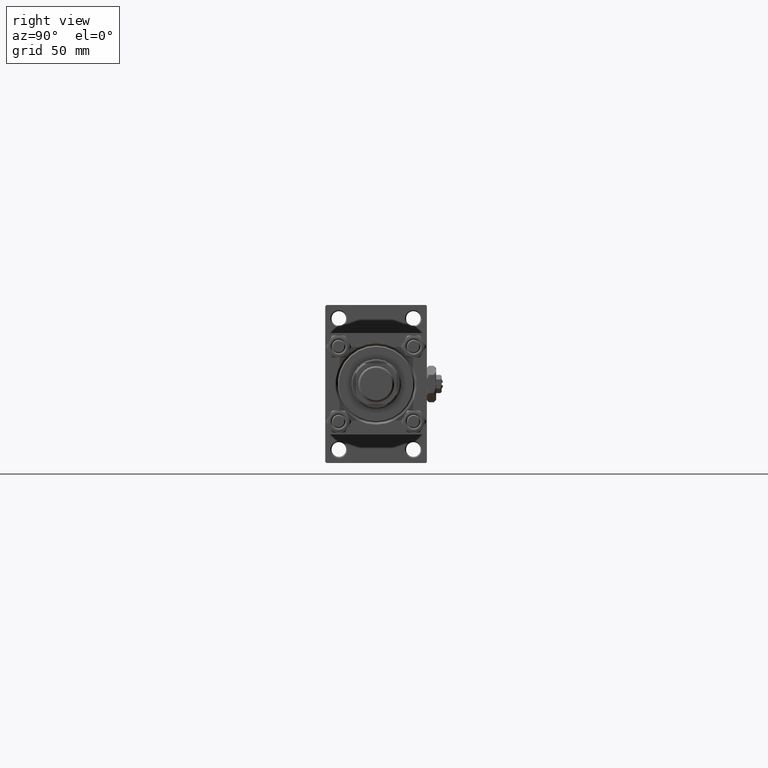
[diagram: clean part render]
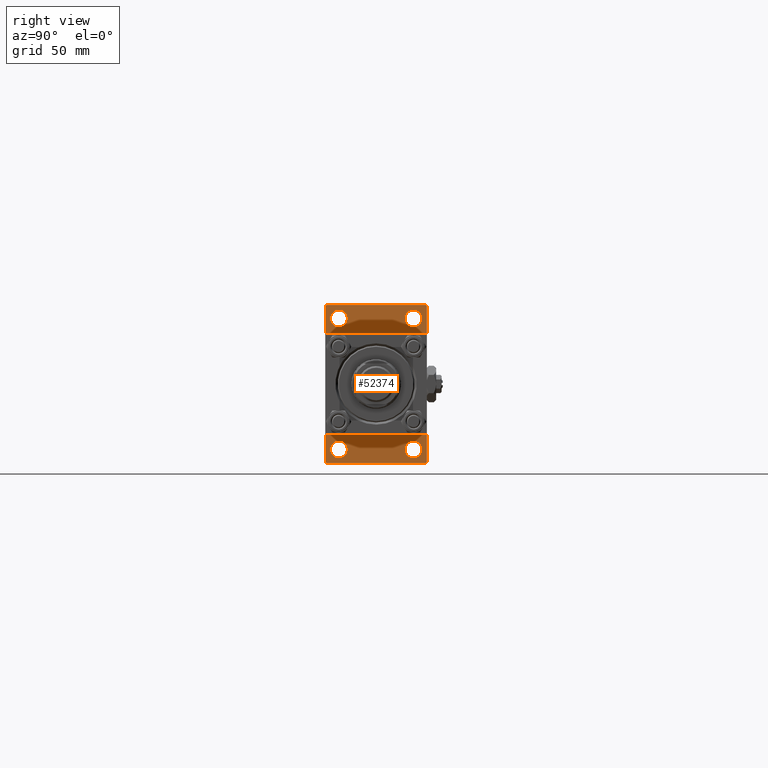
[diagram: same view with one face highlighted and labeled with its STEP entity id]
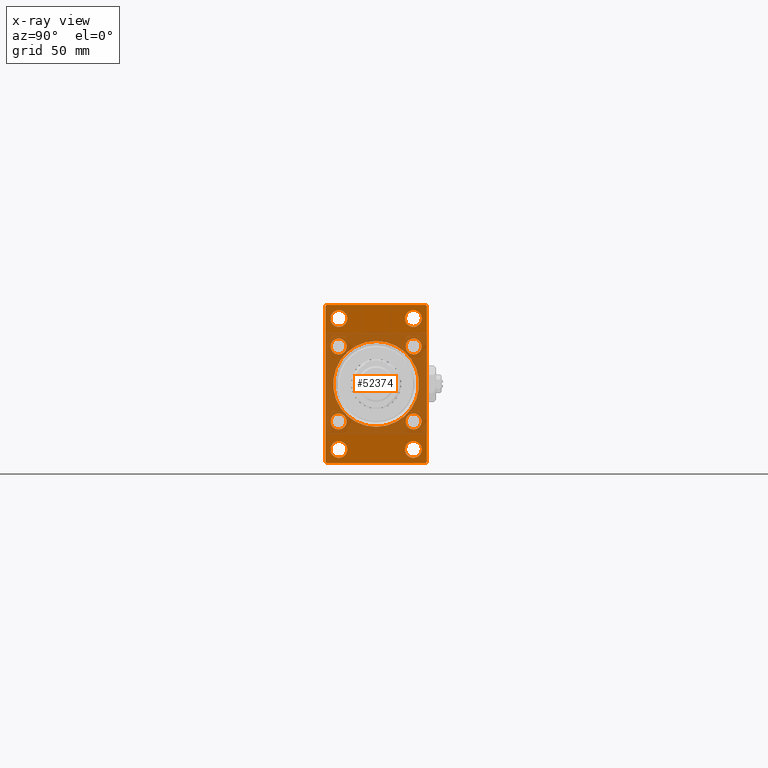
[diagram: x-ray of the same camera — body ghosted, the highlighted face saturated]
A machine part, right view. The second image highlights one B-rep face of the part: STEP entity #52374.
The next image is the same camera in x-ray: the body ghosted, the highlighted face saturated — about 44% of this face is hidden behind the body in this view.
In plain terms, the highlighted planar face has unit normal (-1, 0, 0).
Its self-contained STEP definition (entity closure, byte-faithful):
#17 = CIRCLE ( 'NONE', #29633, 3.749999999999975575 ) ;
#107 = ORIENTED_EDGE ( 'NONE', *, *, #19731, .F. ) ;
#483 = EDGE_LOOP ( 'NONE', ( #46941, #21311 ) ) ;
#1132 = DIRECTION ( 'NONE',  ( -1.000000000000000000, 0.000000000000000000, -0.000000000000000000 ) ) ;
#1295 = EDGE_CURVE ( 'NONE', #42853, #26119, #33897, .T. ) ;
#1417 = EDGE_LOOP ( 'NONE', ( #51754, #32099 ) ) ;
#1655 = CARTESIAN_POINT ( 'NONE',  ( 25.00000000000000000, -16.59999999999999076, -16.60000000000000853 ) ) ;
#1703 = CIRCLE ( 'NONE', #44055, 19.00000000000000000 ) ;
#2112 = CARTESIAN_POINT ( 'NONE',  ( 25.00000000000000000, 16.49999999999999289, 28.99999999999998934 ) ) ;
#2207 = EDGE_CURVE ( 'NONE', #41425, #40800, #24503, .T. ) ;
#2624 = FACE_BOUND ( 'NONE', #23554, .T. ) ;
#3165 = DIRECTION ( 'NONE',  ( 0.000000000000000000, 0.000000000000000000, -1.000000000000000000 ) ) ;
#3223 = VERTEX_POINT ( 'NONE', #51344 ) ;
#3306 = CARTESIAN_POINT ( 'NONE',  ( 25.00000000000000000, 16.59999999999999787, -13.09999999999997300 ) ) ;
#4178 = EDGE_CURVE ( 'NONE', #16349, #29903, #17, .T. ) ;
#4385 = EDGE_LOOP ( 'NONE', ( #5790, #6705 ) ) ;
#4490 = CARTESIAN_POINT ( 'NONE',  ( 24.99999999999999289, -2.602085213965210642E-15, 19.00000000000000000 ) ) ;
#4502 = CIRCLE ( 'NONE', #42569, 3.500000000000003109 ) ;
#4521 = ORIENTED_EDGE ( 'NONE', *, *, #2207, .T. ) ;
#4573 = CARTESIAN_POINT ( 'NONE',  ( 25.00000000000000000, 16.59999999999999787, 16.60000000000000497 ) ) ;
#4574 = CARTESIAN_POINT ( 'NONE',  ( 25.00000000000000000, 16.49999999999999289, -32.75000000000003553 ) ) ;
#4740 = ORIENTED_EDGE ( 'NONE', *, *, #10144, .T. ) ;
#4933 = VERTEX_POINT ( 'NONE', #33167 ) ;
#5521 = ORIENTED_EDGE ( 'NONE', *, *, #25293, .T. ) ;
#5560 = FACE_BOUND ( 'NONE', #19928, .T. ) ;
#5627 = ORIENTED_EDGE ( 'NONE', *, *, #19428, .T. ) ;
#5706 = CARTESIAN_POINT ( 'NONE',  ( 25.00000000000000000, -16.50000000000000711, 25.24999999999996092 ) ) ;
#5723 = EDGE_LOOP ( 'NONE', ( #39144, #37399, #107, #41552, #28052, #5521, #39562, #29281 ) ) ;
#5790 = ORIENTED_EDGE ( 'NONE', *, *, #8298, .T. ) ;
#5854 = VECTOR ( 'NONE', #42106, 999.9999999999998863 ) ;
#5918 = VERTEX_POINT ( 'NONE', #35001 ) ;
#6335 = FACE_BOUND ( 'NONE', #27153, .T. ) ;
#6588 = DIRECTION ( 'NONE',  ( -0.000000000000000000, 0.000000000000000000, 1.000000000000000000 ) ) ;
#6705 = ORIENTED_EDGE ( 'NONE', *, *, #7513, .T. ) ;
#6930 = CARTESIAN_POINT ( 'NONE',  ( 25.00000000000000000, 22.50000000000000355, 35.00000000000000711 ) ) ;
#6942 = CIRCLE ( 'NONE', #36576, 3.500000000000006661 ) ;
#7239 = VERTEX_POINT ( 'NONE', #29235 ) ;
#7308 = CARTESIAN_POINT ( 'NONE',  ( 25.00000000000000000, -16.50000000000000711, 28.99999999999998934 ) ) ;
#7409 = DIRECTION ( 'NONE',  ( 0.000000000000000000, 0.000000000000000000, 1.000000000000000000 ) ) ;
#7513 = EDGE_CURVE ( 'NONE', #9694, #7239, #17913, .T. ) ;
#7837 = CARTESIAN_POINT ( 'NONE',  ( 25.00000000000000000, -22.00000000000000355, -35.00000000000000000 ) ) ;
#8298 = EDGE_CURVE ( 'NONE', #7239, #9694, #6942, .T. ) ;
#8469 = EDGE_CURVE ( 'NONE', #20475, #51329, #30680, .T. ) ;
#8546 = EDGE_CURVE ( 'NONE', #26119, #4933, #51492, .T. ) ;
#8558 = DIRECTION ( 'NONE',  ( -1.000000000000000000, 0.000000000000000000, -0.000000000000000000 ) ) ;
#8561 = DIRECTION ( 'NONE',  ( 0.000000000000000000, 0.000000000000000000, 1.000000000000000000 ) ) ;
#8563 = ORIENTED_EDGE ( 'NONE', *, *, #30280, .T. ) ;
#8848 = CARTESIAN_POINT ( 'NONE',  ( 25.00000000000000000, -16.59999999999999076, -16.60000000000000853 ) ) ;
#8901 = EDGE_CURVE ( 'NONE', #51329, #20475, #10345, .T. ) ;
#9198 = EDGE_CURVE ( 'NONE', #27658, #35706, #25070, .T. ) ;
#9244 = ORIENTED_EDGE ( 'NONE', *, *, #52024, .T. ) ;
#9694 = VERTEX_POINT ( 'NONE', #43655 ) ;
#9985 = VERTEX_POINT ( 'NONE', #5706 ) ;
#10061 = VERTEX_POINT ( 'NONE', #22151 ) ;
#10144 = EDGE_CURVE ( 'NONE', #50991, #11439, #42552, .T. ) ;
#10246 = EDGE_CURVE ( 'NONE', #38109, #10929, #12069, .T. ) ;
#10307 = FACE_BOUND ( 'NONE', #31988, .T. ) ;
#10345 = CIRCLE ( 'NONE', #21364, 3.750000000000027534 ) ;
#10428 = DIRECTION ( 'NONE',  ( -1.000000000000000000, 0.000000000000000000, -0.000000000000000000 ) ) ;
#10504 = CIRCLE ( 'NONE', #24933, 3.500000000000031086 ) ;
#10571 = FACE_BOUND ( 'NONE', #44590, .T. ) ;
#10929 = VERTEX_POINT ( 'NONE', #19735 ) ;
#11157 = DIRECTION ( 'NONE',  ( -1.000000000000000000, 0.000000000000000000, -0.000000000000000000 ) ) ;
#11174 = VECTOR ( 'NONE', #36470, 1000.000000000000000 ) ;
#11439 = VERTEX_POINT ( 'NONE', #37941 ) ;
#11521 = CARTESIAN_POINT ( 'NONE',  ( 25.00000000000000000, -16.59999999999999076, -13.10000000000000320 ) ) ;
#11758 = DIRECTION ( 'NONE',  ( 0.000000000000000000, 0.000000000000000000, 1.000000000000000000 ) ) ;
#11789 = LINE ( 'NONE', #20286, #50195 ) ;
#12069 = CIRCLE ( 'NONE', #33258, 3.500000000000003109 ) ;
#12518 = DIRECTION ( 'NONE',  ( -1.000000000000000000, 0.000000000000000000, -0.000000000000000000 ) ) ;
#12787 = CARTESIAN_POINT ( 'NONE',  ( 25.00000000000000000, 16.59999999999999787, -16.60000000000000497 ) ) ;
#13019 = EDGE_CURVE ( 'NONE', #41009, #27658, #34479, .T. ) ;
#13035 = DIRECTION ( 'NONE',  ( 0.000000000000000000, 0.000000000000000000, 1.000000000000000000 ) ) ;
#13294 = DIRECTION ( 'NONE',  ( -1.000000000000000000, 0.000000000000000000, -0.000000000000000000 ) ) ;
#13499 = DIRECTION ( 'NONE',  ( -1.000000000000000000, 0.000000000000000000, -0.000000000000000000 ) ) ;
#13573 = VERTEX_POINT ( 'NONE', #32780 ) ;
#13815 = DIRECTION ( 'NONE',  ( -1.000000000000000000, 0.000000000000000000, -0.000000000000000000 ) ) ;
#13984 = AXIS2_PLACEMENT_3D ( 'NONE', #52225, #28345, #32315 ) ;
#14141 = DIRECTION ( 'NONE',  ( 0.000000000000000000, 0.000000000000000000, 1.000000000000000000 ) ) ;
#14153 = DIRECTION ( 'NONE',  ( 0.000000000000000000, 0.000000000000000000, 1.000000000000000000 ) ) ;
#14286 = CARTESIAN_POINT ( 'NONE',  ( 25.00000000000000000, -22.49999999999999645, -34.50000000000000000 ) ) ;
#14369 = AXIS2_PLACEMENT_3D ( 'NONE', #12787, #8558, #20223 ) ;
#14739 = CIRCLE ( 'NONE', #20694, 3.750000000000031086 ) ;
#15073 = AXIS2_PLACEMENT_3D ( 'NONE', #7308, #34640, #43374 ) ;
#15323 = DIRECTION ( 'NONE',  ( -1.000000000000000000, 0.000000000000000000, -0.000000000000000000 ) ) ;
#15393 = DIRECTION ( 'NONE',  ( 0.000000000000000000, 0.000000000000000000, 1.000000000000000000 ) ) ;
#16260 = DIRECTION ( 'NONE',  ( -1.000000000000000000, 0.000000000000000000, -0.000000000000000000 ) ) ;
#16349 = VERTEX_POINT ( 'NONE', #19838 ) ;
#16351 = CARTESIAN_POINT ( 'NONE',  ( 25.00000000000000000, 16.59999999999999787, 13.09999999999997300 ) ) ;
#16931 = ORIENTED_EDGE ( 'NONE', *, *, #10246, .T. ) ;
#17913 = CIRCLE ( 'NONE', #40772, 3.500000000000006661 ) ;
#18615 = CIRCLE ( 'NONE', #14369, 3.500000000000031086 ) ;
#18795 = CARTESIAN_POINT ( 'NONE',  ( 25.00000000000000000, 0.000000000000000000, 0.000000000000000000 ) ) ;
#19428 = EDGE_CURVE ( 'NONE', #5918, #40308, #18615, .T. ) ;
#19456 = VECTOR ( 'NONE', #49786, 1000.000000000000000 ) ;
#19731 = EDGE_CURVE ( 'NONE', #42853, #10061, #33602, .T. ) ;
#19735 = CARTESIAN_POINT ( 'NONE',  ( 25.00000000000000000, -16.59999999999999076, -20.10000000000000853 ) ) ;
#19838 = CARTESIAN_POINT ( 'NONE',  ( 25.00000000000000000, 16.49999999999999289, 25.25000000000001421 ) ) ;
#19853 = CIRCLE ( 'NONE', #26645, 3.750000000000027534 ) ;
#19928 = EDGE_LOOP ( 'NONE', ( #34600, #16931 ) ) ;
#20035 = DIRECTION ( 'NONE',  ( 0.000000000000000000, 0.000000000000000000, 1.000000000000000000 ) ) ;
#20223 = DIRECTION ( 'NONE',  ( 0.000000000000000000, 0.000000000000000000, 1.000000000000000000 ) ) ;
#20286 = CARTESIAN_POINT ( 'NONE',  ( 25.00000000000000000, 22.50000000000000355, -34.99999999999999289 ) ) ;
#20475 = VERTEX_POINT ( 'NONE', #31850 ) ;
#20694 = AXIS2_PLACEMENT_3D ( 'NONE', #34500, #13815, #49633 ) ;
#20696 = EDGE_CURVE ( 'NONE', #37728, #43984, #1703, .T. ) ;
#21311 = ORIENTED_EDGE ( 'NONE', *, *, #27167, .F. ) ;
#21364 = AXIS2_PLACEMENT_3D ( 'NONE', #51684, #15323, #31260 ) ;
#21383 = VECTOR ( 'NONE', #29556, 999.9999999999998863 ) ;
#21735 = PLANE ( 'NONE',  #37002 ) ;
#21979 = AXIS2_PLACEMENT_3D ( 'NONE', #35216, #30201, #23013 ) ;
#22151 = CARTESIAN_POINT ( 'NONE',  ( 25.00000000000000000, 22.50000000000000355, -34.49999999999999289 ) ) ;
#22425 = CARTESIAN_POINT ( 'NONE',  ( 25.00000000000000000, -22.49999999999999645, 34.50000000000000000 ) ) ;
#23013 = DIRECTION ( 'NONE',  ( 0.000000000000000000, 0.000000000000000000, 1.000000000000000000 ) ) ;
#23103 = DIRECTION ( 'NONE',  ( 0.000000000000000000, -1.000000000000000000, -1.541976423090495387E-16 ) ) ;
#23554 = EDGE_LOOP ( 'NONE', ( #5627, #25967 ) ) ;
#23744 = DIRECTION ( 'NONE',  ( 0.000000000000000000, -1.000000000000000000, -1.541976423090495387E-16 ) ) ;
#24052 = ORIENTED_EDGE ( 'NONE', *, *, #8469, .T. ) ;
#24503 = CIRCLE ( 'NONE', #21979, 3.750000000000027534 ) ;
#24933 = AXIS2_PLACEMENT_3D ( 'NONE', #4573, #13294, #13035 ) ;
#25070 = LINE ( 'NONE', #7837, #11174 ) ;
#25124 = CARTESIAN_POINT ( 'NONE',  ( 25.00000000000000000, 22.50000000000000355, 35.00000000000000711 ) ) ;
#25293 = EDGE_CURVE ( 'NONE', #4933, #41009, #41359, .T. ) ;
#25967 = ORIENTED_EDGE ( 'NONE', *, *, #50037, .T. ) ;
#25974 = FACE_BOUND ( 'NONE', #4385, .T. ) ;
#26111 = CIRCLE ( 'NONE', #15073, 3.750000000000031086 ) ;
#26119 = VERTEX_POINT ( 'NONE', #49186 ) ;
#26148 = EDGE_CURVE ( 'NONE', #13573, #10061, #49448, .T. ) ;
#26441 = VECTOR ( 'NONE', #23103, 1000.000000000000000 ) ;
#26645 = AXIS2_PLACEMENT_3D ( 'NONE', #30599, #10428, #14141 ) ;
#26716 = CIRCLE ( 'NONE', #13984, 3.749999999999975575 ) ;
#26913 = EDGE_CURVE ( 'NONE', #13573, #35706, #11789, .T. ) ;
#27153 = EDGE_LOOP ( 'NONE', ( #8563, #9244 ) ) ;
#27167 = EDGE_CURVE ( 'NONE', #43984, #37728, #31607, .T. ) ;
#27447 = CARTESIAN_POINT ( 'NONE',  ( 25.00000000000000000, 16.49999999999999289, 32.74999999999996447 ) ) ;
#27658 = VERTEX_POINT ( 'NONE', #14286 ) ;
#28052 = ORIENTED_EDGE ( 'NONE', *, *, #8546, .T. ) ;
#28108 = EDGE_CURVE ( 'NONE', #10929, #38109, #4502, .T. ) ;
#28345 = DIRECTION ( 'NONE',  ( -1.000000000000000000, 0.000000000000000000, -0.000000000000000000 ) ) ;
#29235 = CARTESIAN_POINT ( 'NONE',  ( 25.00000000000000000, -16.59999999999999076, 13.10000000000000142 ) ) ;
#29281 = ORIENTED_EDGE ( 'NONE', *, *, #9198, .T. ) ;
#29556 = DIRECTION ( 'NONE',  ( -0.000000000000000000, 0.7071067811865525687, 0.7071067811865425767 ) ) ;
#29633 = AXIS2_PLACEMENT_3D ( 'NONE', #2112, #40184, #20035 ) ;
#29643 = CARTESIAN_POINT ( 'NONE',  ( 25.00000000000000000, -21.99999999999998934, -35.00000000000000000 ) ) ;
#29903 = VERTEX_POINT ( 'NONE', #27447 ) ;
#30201 = DIRECTION ( 'NONE',  ( -1.000000000000000000, 0.000000000000000000, -0.000000000000000000 ) ) ;
#30280 = EDGE_CURVE ( 'NONE', #9985, #3223, #14739, .T. ) ;
#30502 = CARTESIAN_POINT ( 'NONE',  ( 25.00000000000000000, -22.49999999999999645, 35.00000000000000000 ) ) ;
#30599 = CARTESIAN_POINT ( 'NONE',  ( 25.00000000000000000, -16.50000000000000711, -29.00000000000000711 ) ) ;
#30628 = ORIENTED_EDGE ( 'NONE', *, *, #30811, .T. ) ;
#30680 = CIRCLE ( 'NONE', #49309, 3.750000000000027534 ) ;
#30811 = EDGE_CURVE ( 'NONE', #40800, #41425, #19853, .T. ) ;
#30853 = CARTESIAN_POINT ( 'NONE',  ( 25.00000000000000000, -16.50000000000000711, -32.75000000000003553 ) ) ;
#30998 = EDGE_CURVE ( 'NONE', #11439, #50991, #10504, .T. ) ;
#31260 = DIRECTION ( 'NONE',  ( 0.000000000000000000, 0.000000000000000000, 1.000000000000000000 ) ) ;
#31266 = CARTESIAN_POINT ( 'NONE',  ( 24.99999999999999289, -2.602085213965210642E-15, 0.000000000000000000 ) ) ;
#31578 = DIRECTION ( 'NONE',  ( -1.000000000000000000, 0.000000000000000000, -0.000000000000000000 ) ) ;
#31607 = CIRCLE ( 'NONE', #39205, 19.00000000000000000 ) ;
#31850 = CARTESIAN_POINT ( 'NONE',  ( 25.00000000000000000, 16.49999999999999289, -25.24999999999998224 ) ) ;
#31988 = EDGE_LOOP ( 'NONE', ( #4521, #30628 ) ) ;
#32099 = ORIENTED_EDGE ( 'NONE', *, *, #45784, .T. ) ;
#32315 = DIRECTION ( 'NONE',  ( 0.000000000000000000, 0.000000000000000000, 1.000000000000000000 ) ) ;
#32317 = DIRECTION ( 'NONE',  ( -1.000000000000000000, 0.000000000000000000, -0.000000000000000000 ) ) ;
#32382 = EDGE_LOOP ( 'NONE', ( #4740, #49686 ) ) ;
#32693 = CARTESIAN_POINT ( 'NONE',  ( 25.00000000000000000, -16.59999999999999076, 16.60000000000000853 ) ) ;
#32780 = CARTESIAN_POINT ( 'NONE',  ( 25.00000000000000000, 21.99999999999999645, -34.99999999999999289 ) ) ;
#33167 = CARTESIAN_POINT ( 'NONE',  ( 25.00000000000000000, -21.99999999999998934, 35.00000000000000000 ) ) ;
#33258 = AXIS2_PLACEMENT_3D ( 'NONE', #8848, #37212, #11758 ) ;
#33378 = CARTESIAN_POINT ( 'NONE',  ( 24.99999999999999289, -2.752562955852396712E-16, -19.00000000000000000 ) ) ;
#33482 = DIRECTION ( 'NONE',  ( 0.000000000000000000, 0.000000000000000000, 1.000000000000000000 ) ) ;
#33602 = LINE ( 'NONE', #25124, #19456 ) ;
#33897 = LINE ( 'NONE', #34160, #5854 ) ;
#34160 = CARTESIAN_POINT ( 'NONE',  ( 25.00000000000000000, 22.00000000000000355, 35.00000000000000711 ) ) ;
#34307 = ORIENTED_EDGE ( 'NONE', *, *, #8901, .T. ) ;
#34479 = LINE ( 'NONE', #30502, #50703 ) ;
#34500 = CARTESIAN_POINT ( 'NONE',  ( 25.00000000000000000, -16.50000000000000711, 28.99999999999998934 ) ) ;
#34600 = ORIENTED_EDGE ( 'NONE', *, *, #28108, .T. ) ;
#34640 = DIRECTION ( 'NONE',  ( -1.000000000000000000, 0.000000000000000000, -0.000000000000000000 ) ) ;
#34978 = FACE_BOUND ( 'NONE', #483, .T. ) ;
#35001 = CARTESIAN_POINT ( 'NONE',  ( 25.00000000000000000, 16.59999999999999787, -20.10000000000003340 ) ) ;
#35035 = CARTESIAN_POINT ( 'NONE',  ( 25.00000000000000000, -16.59999999999999076, 16.60000000000000853 ) ) ;
#35216 = CARTESIAN_POINT ( 'NONE',  ( 25.00000000000000000, -16.50000000000000711, -29.00000000000000711 ) ) ;
#35706 = VERTEX_POINT ( 'NONE', #29643 ) ;
#36470 = DIRECTION ( 'NONE',  ( 0.000000000000000000, 0.7071067811865426878, -0.7071067811865524577 ) ) ;
#36576 = AXIS2_PLACEMENT_3D ( 'NONE', #32693, #12518, #8561 ) ;
#37002 = AXIS2_PLACEMENT_3D ( 'NONE', #18795, #13499, #6588 ) ;
#37212 = DIRECTION ( 'NONE',  ( -1.000000000000000000, 0.000000000000000000, -0.000000000000000000 ) ) ;
#37399 = ORIENTED_EDGE ( 'NONE', *, *, #26148, .T. ) ;
#37728 = VERTEX_POINT ( 'NONE', #4490 ) ;
#37941 = CARTESIAN_POINT ( 'NONE',  ( 25.00000000000000000, 16.59999999999999787, 20.10000000000003340 ) ) ;
#38109 = VERTEX_POINT ( 'NONE', #11521 ) ;
#39144 = ORIENTED_EDGE ( 'NONE', *, *, #26913, .F. ) ;
#39205 = AXIS2_PLACEMENT_3D ( 'NONE', #46781, #50503, #14153 ) ;
#39562 = ORIENTED_EDGE ( 'NONE', *, *, #13019, .T. ) ;
#40184 = DIRECTION ( 'NONE',  ( -1.000000000000000000, 0.000000000000000000, -0.000000000000000000 ) ) ;
#40308 = VERTEX_POINT ( 'NONE', #3306 ) ;
#40664 = DIRECTION ( 'NONE',  ( 0.000000000000000000, 0.000000000000000000, 1.000000000000000000 ) ) ;
#40772 = AXIS2_PLACEMENT_3D ( 'NONE', #35035, #31578, #51223 ) ;
#40800 = VERTEX_POINT ( 'NONE', #48187 ) ;
#40892 = AXIS2_PLACEMENT_3D ( 'NONE', #49156, #16260, #40664 ) ;
#41009 = VERTEX_POINT ( 'NONE', #22425 ) ;
#41359 = LINE ( 'NONE', #46132, #41667 ) ;
#41425 = VERTEX_POINT ( 'NONE', #30853 ) ;
#41552 = ORIENTED_EDGE ( 'NONE', *, *, #1295, .T. ) ;
#41667 = VECTOR ( 'NONE', #50378, 1000.000000000000000 ) ;
#42106 = DIRECTION ( 'NONE',  ( 0.000000000000000000, -0.7071067811865376918, 0.7071067811865574537 ) ) ;
#42552 = CIRCLE ( 'NONE', #40892, 3.500000000000031086 ) ;
#42569 = AXIS2_PLACEMENT_3D ( 'NONE', #1655, #1132, #33482 ) ;
#42674 = DIRECTION ( 'NONE',  ( 1.000000000000000000, -0.000000000000000000, 0.000000000000000000 ) ) ;
#42853 = VERTEX_POINT ( 'NONE', #47784 ) ;
#43251 = CARTESIAN_POINT ( 'NONE',  ( 25.00000000000000000, 16.49999999999999289, -29.00000000000000711 ) ) ;
#43374 = DIRECTION ( 'NONE',  ( 0.000000000000000000, 0.000000000000000000, 1.000000000000000000 ) ) ;
#43655 = CARTESIAN_POINT ( 'NONE',  ( 25.00000000000000000, -16.59999999999999076, 20.10000000000001208 ) ) ;
#43732 = CARTESIAN_POINT ( 'NONE',  ( 25.00000000000000000, 16.59999999999999787, -16.60000000000000497 ) ) ;
#43984 = VERTEX_POINT ( 'NONE', #33378 ) ;
#44055 = AXIS2_PLACEMENT_3D ( 'NONE', #31266, #42674, #47444 ) ;
#44590 = EDGE_LOOP ( 'NONE', ( #34307, #24052 ) ) ;
#44654 = AXIS2_PLACEMENT_3D ( 'NONE', #43732, #32317, #7409 ) ;
#45466 = CARTESIAN_POINT ( 'NONE',  ( 25.00000000000000000, 22.50000000000000355, -34.49999999999999289 ) ) ;
#45493 = CIRCLE ( 'NONE', #44654, 3.500000000000031086 ) ;
#45784 = EDGE_CURVE ( 'NONE', #29903, #16349, #26716, .T. ) ;
#46132 = CARTESIAN_POINT ( 'NONE',  ( 25.00000000000000000, -22.49999999999999645, 34.50000000000000000 ) ) ;
#46386 = FACE_BOUND ( 'NONE', #32382, .T. ) ;
#46781 = CARTESIAN_POINT ( 'NONE',  ( 24.99999999999999289, -2.602085213965210642E-15, 0.000000000000000000 ) ) ;
#46941 = ORIENTED_EDGE ( 'NONE', *, *, #20696, .F. ) ;
#47444 = DIRECTION ( 'NONE',  ( 0.000000000000000000, 0.000000000000000000, 1.000000000000000000 ) ) ;
#47784 = CARTESIAN_POINT ( 'NONE',  ( 25.00000000000000000, 22.50000000000000355, 34.49999999999999289 ) ) ;
#48187 = CARTESIAN_POINT ( 'NONE',  ( 25.00000000000000000, -16.50000000000000711, -25.24999999999998224 ) ) ;
#49156 = CARTESIAN_POINT ( 'NONE',  ( 25.00000000000000000, 16.59999999999999787, 16.60000000000000497 ) ) ;
#49186 = CARTESIAN_POINT ( 'NONE',  ( 25.00000000000000000, 22.00000000000000355, 35.00000000000000711 ) ) ;
#49309 = AXIS2_PLACEMENT_3D ( 'NONE', #43251, #11157, #15393 ) ;
#49448 = LINE ( 'NONE', #45466, #21383 ) ;
#49633 = DIRECTION ( 'NONE',  ( 0.000000000000000000, 0.000000000000000000, 1.000000000000000000 ) ) ;
#49686 = ORIENTED_EDGE ( 'NONE', *, *, #30998, .T. ) ;
#49786 = DIRECTION ( 'NONE',  ( 0.000000000000000000, 0.000000000000000000, -1.000000000000000000 ) ) ;
#50037 = EDGE_CURVE ( 'NONE', #40308, #5918, #45493, .T. ) ;
#50195 = VECTOR ( 'NONE', #23744, 1000.000000000000000 ) ;
#50374 = FACE_OUTER_BOUND ( 'NONE', #5723, .T. ) ;
#50378 = DIRECTION ( 'NONE',  ( -0.000000000000000000, -0.7071067811865426878, -0.7071067811865524577 ) ) ;
#50503 = DIRECTION ( 'NONE',  ( 1.000000000000000000, -0.000000000000000000, 0.000000000000000000 ) ) ;
#50636 = FACE_BOUND ( 'NONE', #1417, .T. ) ;
#50703 = VECTOR ( 'NONE', #3165, 1000.000000000000000 ) ;
#50991 = VERTEX_POINT ( 'NONE', #16351 ) ;
#51223 = DIRECTION ( 'NONE',  ( 0.000000000000000000, 0.000000000000000000, 1.000000000000000000 ) ) ;
#51329 = VERTEX_POINT ( 'NONE', #4574 ) ;
#51344 = CARTESIAN_POINT ( 'NONE',  ( 25.00000000000000000, -16.50000000000000711, 32.75000000000002132 ) ) ;
#51492 = LINE ( 'NONE', #6930, #26441 ) ;
#51684 = CARTESIAN_POINT ( 'NONE',  ( 25.00000000000000000, 16.49999999999999289, -29.00000000000000711 ) ) ;
#51754 = ORIENTED_EDGE ( 'NONE', *, *, #4178, .T. ) ;
#52024 = EDGE_CURVE ( 'NONE', #3223, #9985, #26111, .T. ) ;
#52225 = CARTESIAN_POINT ( 'NONE',  ( 25.00000000000000000, 16.49999999999999289, 28.99999999999998934 ) ) ;
#52374 = ADVANCED_FACE ( 'NONE', ( #50636, #6335, #10307, #10571, #5560, #2624, #25974, #46386, #34978, #50374 ), #21735, .F. ) ;